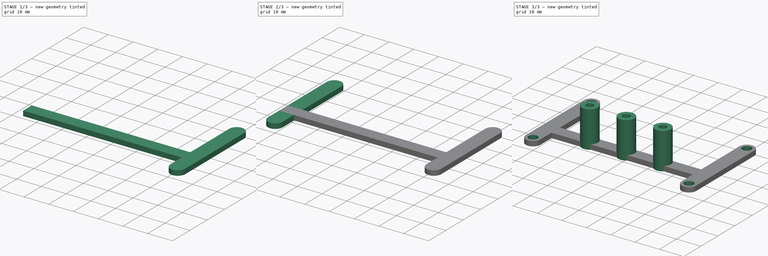
[diagram: build sequence overview — one tinted view per stage of 3, left to right]
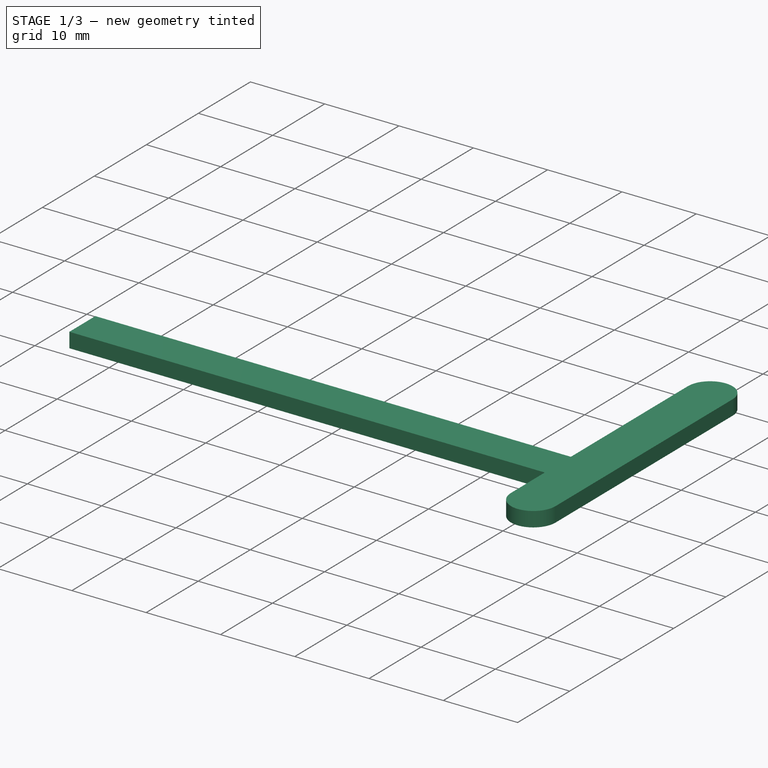
[diagram: stage 1 of 3 — iso view after this stage's code; geometry added in this stage tinted green]
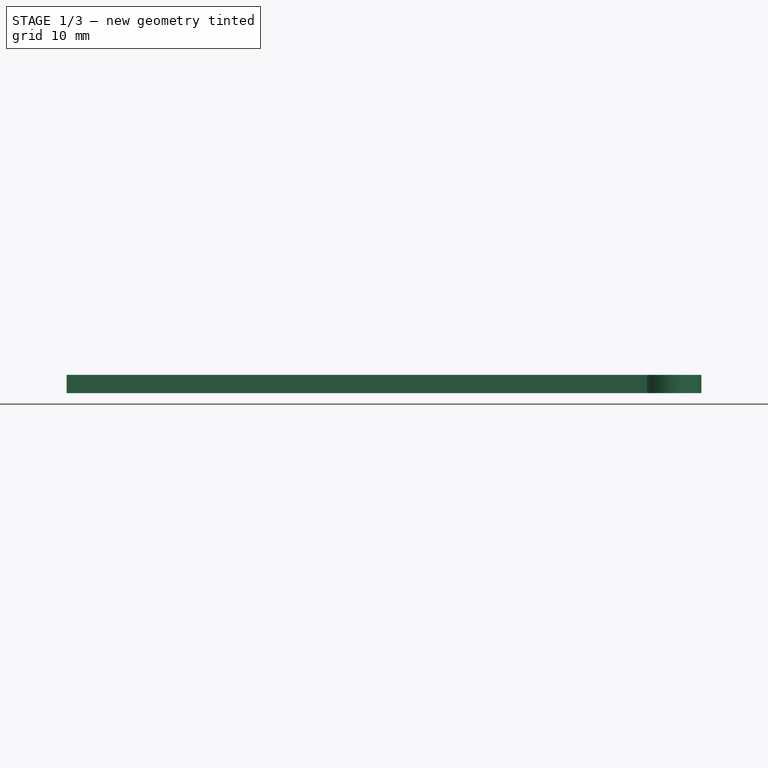
[diagram: stage 1 of 3 — front view after this stage's code; geometry added in this stage tinted green]
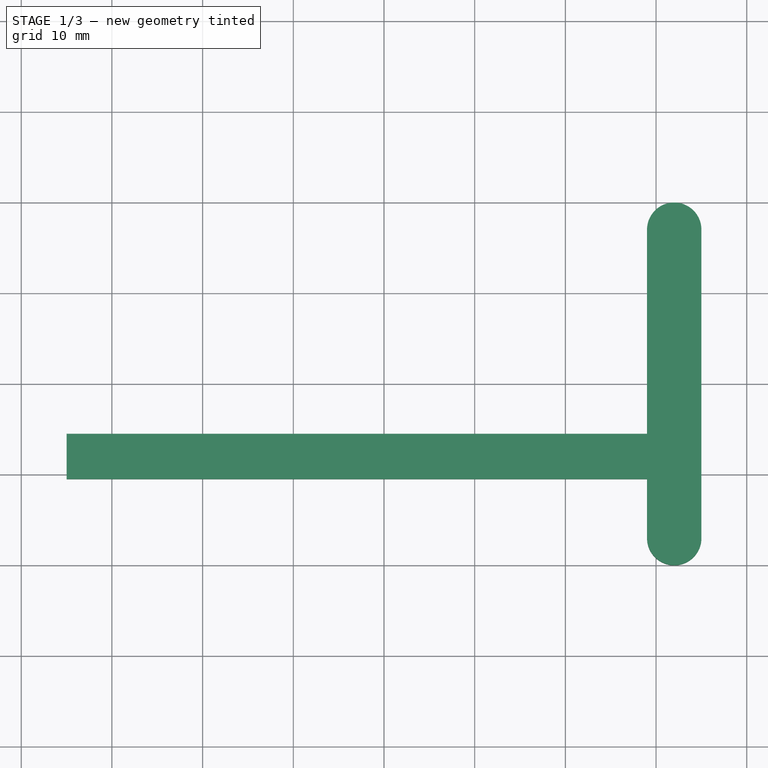
[diagram: stage 1 of 3 — top view after this stage's code; geometry added in this stage tinted green]
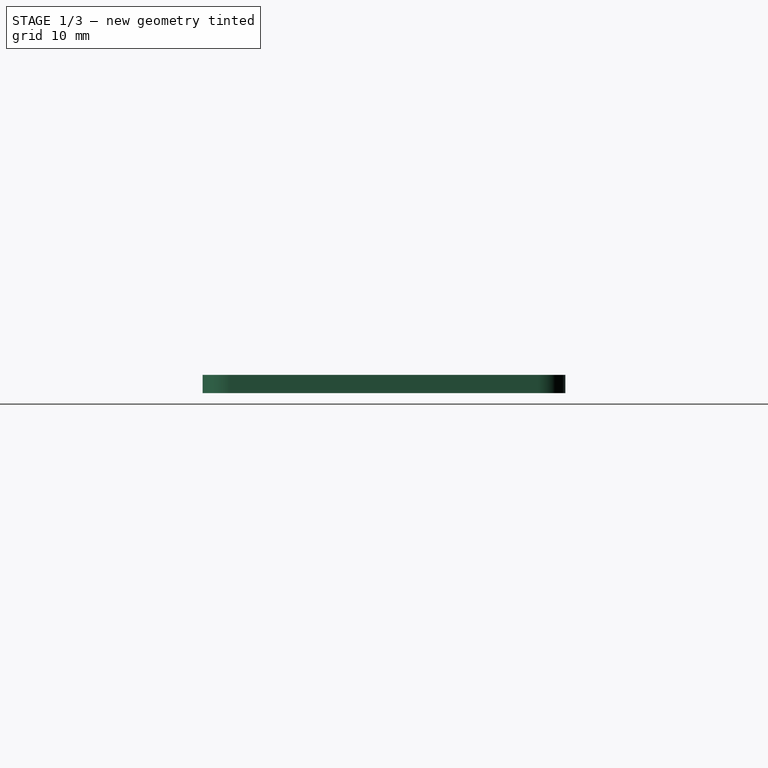
[diagram: stage 1 of 3 — right view after this stage's code; geometry added in this stage tinted green]
FCSTD DOCUMENT  (FreeCAD 0.16R6707 (Git))
Label: LineFollowSensors
License: All rights reserved
LicenseURL: http://en.wikipedia.org/wiki/All_rights_reserved
objects: Sketcher::SketchObject×4, PartDesign::Pad×3, PartDesign::Mirrored×1, PartDesign::Pocket×1
note: 13 computed .brp shape members not serialized (recipe doc carries the construction recipe); baked Part::Feature solids carry a one-line shape summary decoded from their .brp

FEATURE [Sketcher::SketchObject] Sketch
  sketch-geometry (4):
    g0: LineSegment StartX=-35 StartY=-5.5 StartZ=0 EndX=35 EndY=-5.5 EndZ=0
    g1: LineSegment StartX=35 StartY=-5.5 StartZ=0 EndX=35 EndY=-10.5 EndZ=0
    g2: LineSegment StartX=35 StartY=-10.5 StartZ=0 EndX=-35 EndY=-10.5 EndZ=0
    g3: LineSegment StartX=-35 StartY=-10.5 StartZ=0 EndX=-35 EndY=-5.5 EndZ=0
  constraints (12):
    c: Coincident(g0,g1)
    c: Coincident(g1,g2)
    c: Coincident(g2,g3)
    c: Coincident(g3,g0)
    c: Horizontal(g0)
    c: Horizontal(g2)
    c: Vertical(g1)
    c: Vertical(g3)
    c: Symmetric(g2,g1,g-2)
    c: DistanceY(g0,g-1) = 5.5
    c: Distance(g3) = 5
    c: Distance(g2) = 70
FEATURE [PartDesign::Pad] Pad
  Length = 2
  Length2 = 0
  Sketch = -> Sketch
  Type = 4
FEATURE [Sketcher::SketchObject] Sketch001
  Placement = pos=(0,0,2) rot=(0,0,1;0rad)
  Support = -> Pad [Face6]
  sketch-geometry (4):
    g0: LineSegment StartX=35 StartY=17 StartZ=0 EndX=35 EndY=-17 EndZ=0
    g1: LineSegment StartX=29 StartY=-17 StartZ=0 EndX=29 EndY=17 EndZ=0
    g2: ArcOfCircle CenterX=32 CenterY=-17 CenterZ=0 NormalX=0 NormalY=0 NormalZ=1 Radius=3 StartAngle=3.1416 EndAngle=6.28318
    g3: ArcOfCircle CenterX=32 CenterY=17 CenterZ=0 NormalX=0 NormalY=0 NormalZ=1 Radius=3 StartAngle=6.28318 EndAngle=9.42478
  constraints (13):
    c: Vertical(g0)
    c: Vertical(g1)
    c: Coincident(g2,g1)
    c: Coincident(g2,g0)
    c: Equal(g1,g0)
    c: DistanceY(g2) = -17
    c: DistanceX(g-1,g2) = 32
    c: Tangent(g2,g1)
    c: Radius(g2) = 3
    c: Coincident(g3,g1)
    c: Coincident(g3,g0)
    c: Tangent(g1,g3)
    c: Symmetric(g2,g3,g-1)
FEATURE [PartDesign::Pad] Pad001
  Length = 2
  Length2 = 100
  Reversed = true
  Sketch = -> Sketch001
  Type = 0
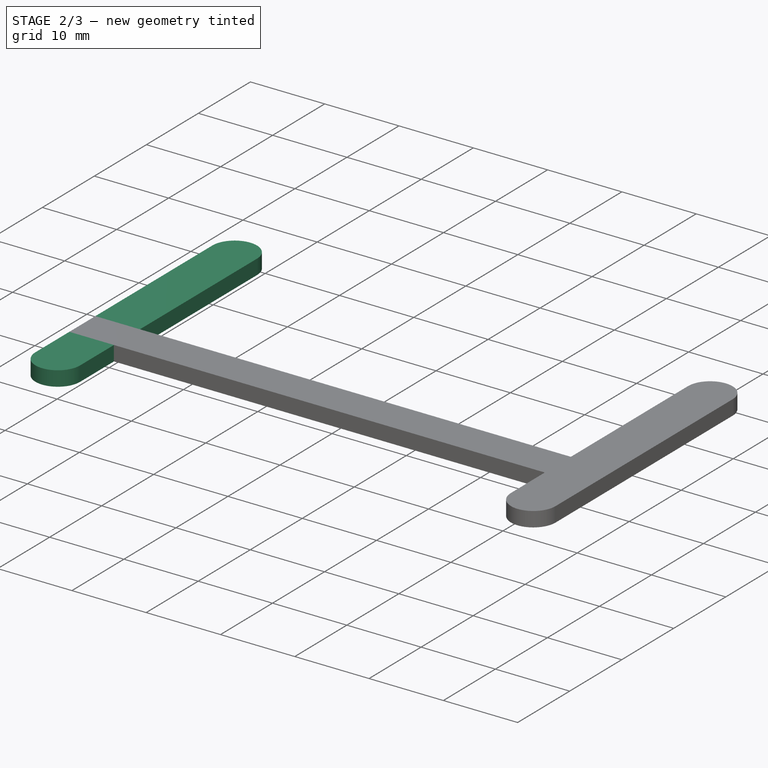
[diagram: stage 2 of 3 — iso view after this stage's code; geometry added in this stage tinted green]
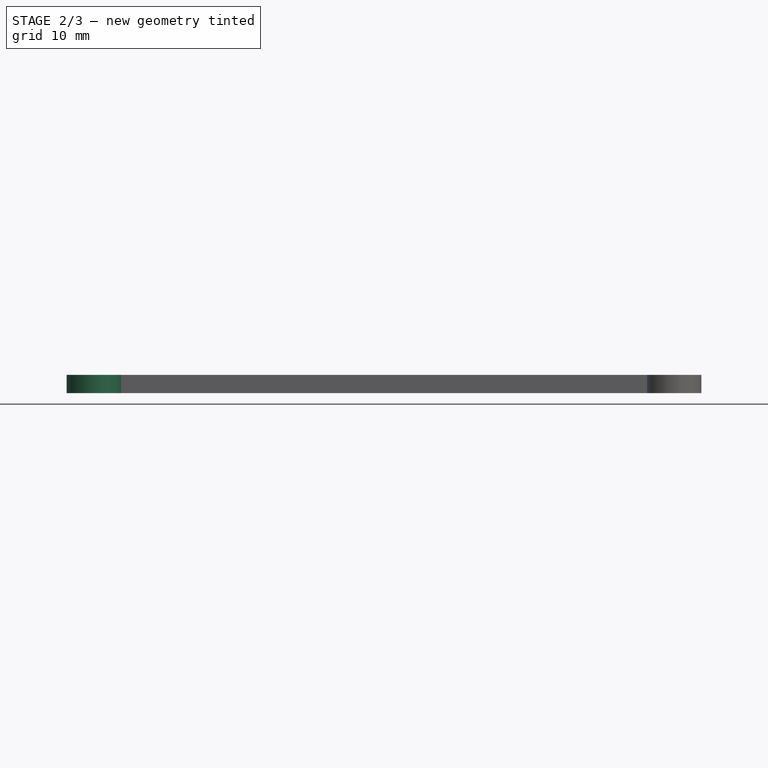
[diagram: stage 2 of 3 — front view after this stage's code; geometry added in this stage tinted green]
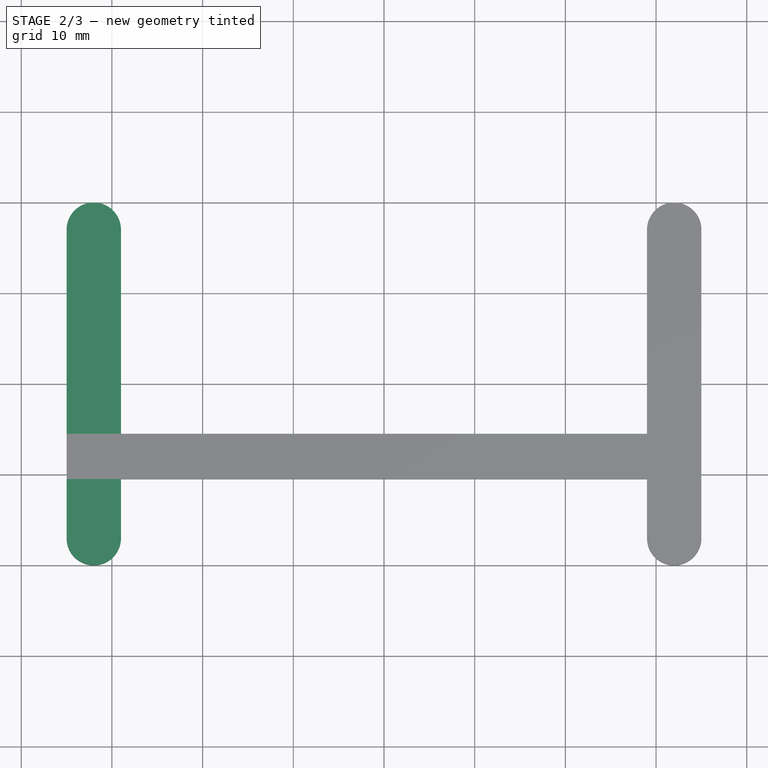
[diagram: stage 2 of 3 — top view after this stage's code; geometry added in this stage tinted green]
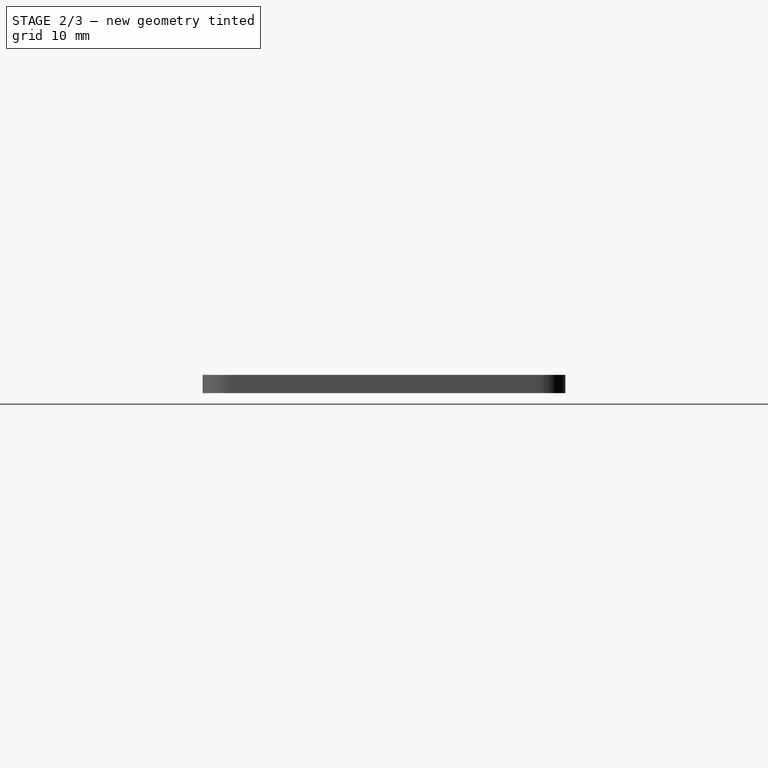
[diagram: stage 2 of 3 — right view after this stage's code; geometry added in this stage tinted green]
FEATURE [PartDesign::Mirrored] Mirrored
  MirrorPlane = -> Sketch001 [V_Axis]
  Originals = -> [Pad001]
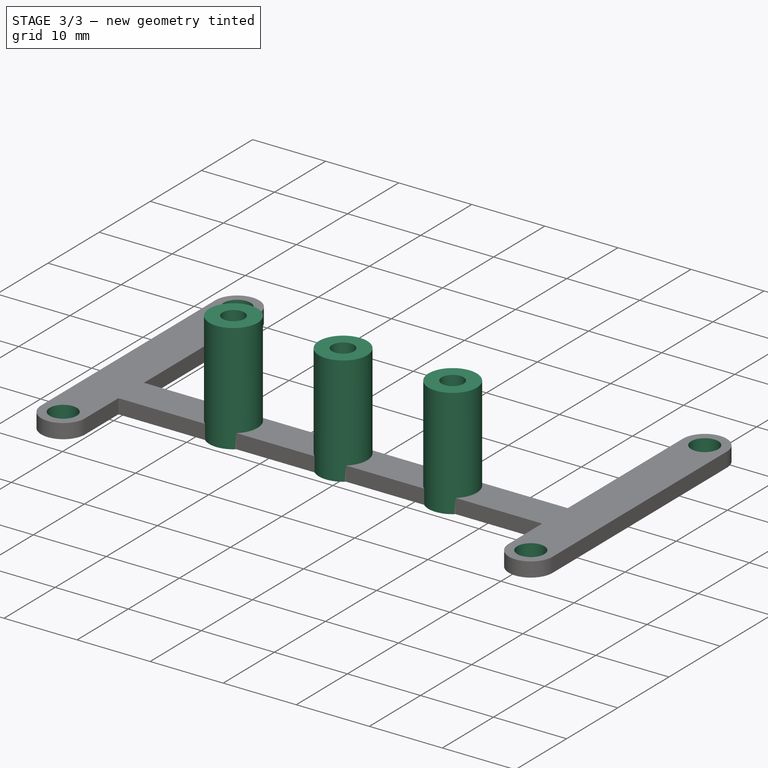
[diagram: stage 3 of 3 — iso view after this stage's code; geometry added in this stage tinted green]
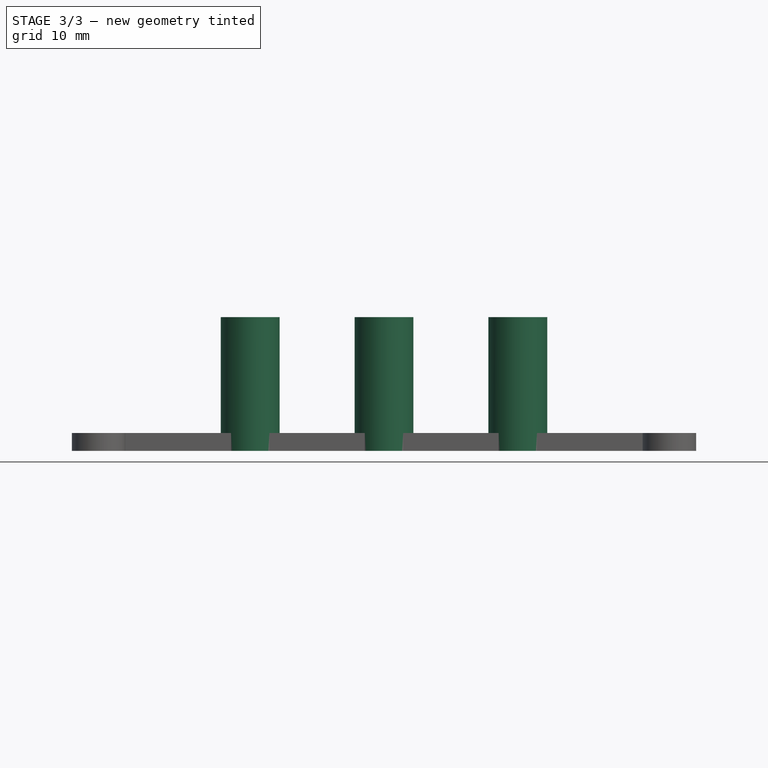
[diagram: stage 3 of 3 — front view after this stage's code; geometry added in this stage tinted green]
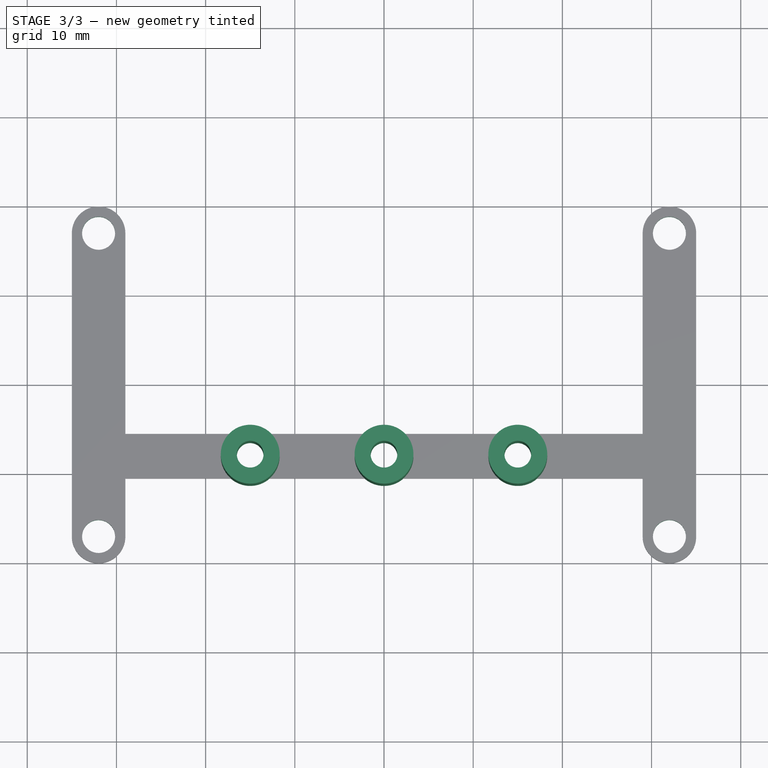
[diagram: stage 3 of 3 — top view after this stage's code; geometry added in this stage tinted green]
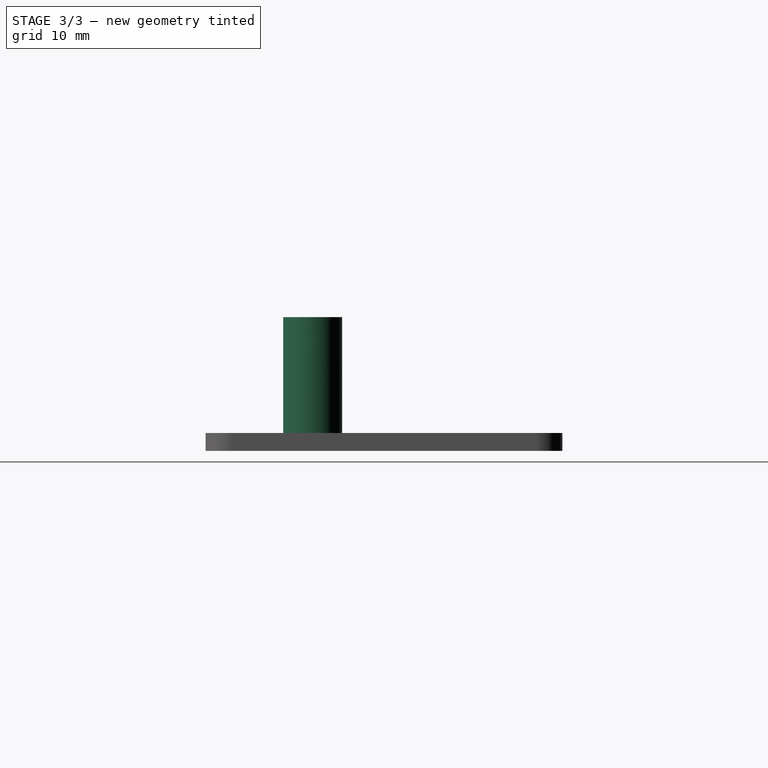
[diagram: stage 3 of 3 — right view after this stage's code; geometry added in this stage tinted green]
FEATURE [Sketcher::SketchObject] Sketch002
  Placement = pos=(0,0,2) rot=(0,0,1;0rad)
  Support = -> Mirrored [Face5]
  sketch-geometry (4):
    g0: Circle CenterX=0 CenterY=-8 CenterZ=0 NormalX=0 NormalY=0 NormalZ=1 Radius=3.3
    g1: LineSegment [constr] StartX=-15 StartY=-8 StartZ=0 EndX=15 EndY=-8 EndZ=0
    g2: Circle CenterX=-15 CenterY=-8 CenterZ=0 NormalX=0 NormalY=0 NormalZ=1 Radius=3.3
    g3: Circle CenterX=15 CenterY=-8 CenterZ=0 NormalX=0 NormalY=0 NormalZ=1 Radius=3.3
  constraints (11):
    c: PointOnObject(g0,g-2)
    c: Horizontal(g1)
    c: DistanceY(g1,g-1) = 8
    c: PointOnObject(g0,g1)
    c: Coincident(g2,g1)
    c: Coincident(g3,g1)
    c: Symmetric(g1,g1,g-2)
    c: Equal(g2,g0)
    c: Equal(g0,g3)
    c: Radius(g2) = 3.3
    c: Distance(g1,g0) = 15
FEATURE [PartDesign::Pad] Pad002
  Length = 13
  Length2 = 2
  Sketch = -> Sketch002
  Type = 4
FEATURE [Sketcher::SketchObject] Sketch003
  ExternalGeometry = -> [Pad002]
  Placement = pos=(0,0,0) rot=(1,0,0;3.14159rad)
  Support = -> Pad002 [Face18]
  sketch-geometry (7):
    g0: Circle CenterX=0 CenterY=8 CenterZ=0 NormalX=0 NormalY=0 NormalZ=1 Radius=1.5
    g1: Circle CenterX=-15 CenterY=8 CenterZ=0 NormalX=0 NormalY=0 NormalZ=1 Radius=1.5
    g2: Circle CenterX=15 CenterY=8 CenterZ=0 NormalX=0 NormalY=0 NormalZ=1 Radius=1.5
    g3: Circle CenterX=-32 CenterY=-17 CenterZ=0 NormalX=0 NormalY=0 NormalZ=1 Radius=1.85
    g4: Circle CenterX=-32 CenterY=17 CenterZ=0 NormalX=0 NormalY=0 NormalZ=1 Radius=1.85
    g5: Circle CenterX=32 CenterY=17 CenterZ=0 NormalX=0 NormalY=0 NormalZ=1 Radius=1.85
    g6: Circle CenterX=32 CenterY=-17 CenterZ=0 NormalX=0 NormalY=0 NormalZ=1 Radius=1.85
  constraints (16):
    c: Equal(g0,g1)
    c: Equal(g1,g2)
    c: Radius(g0) = 1.5
    c: Equal(g4,g3)
    c: Equal(g3,g6)
    c: Equal(g6,g5)
    c: Radius(g3) = 1.85
    c: Symmetric(g3,g6,g-2)
    c: Symmetric(g4,g5,g-2)
    c: PointOnObject(g0,g-2)
    c: Symmetric(g1,g2,g-2)
    c: DistanceY(g1,g0) = 0
    c: DistanceX(g1,g0) = 15
    c: Coincident(g-6,g6)
    c: Symmetric(g6,g5,g-1)
    c: Coincident(g2,g-7)
FEATURE [PartDesign::Pocket] Pocket
  Length = 10
  Sketch = -> Sketch003
  Type = 1
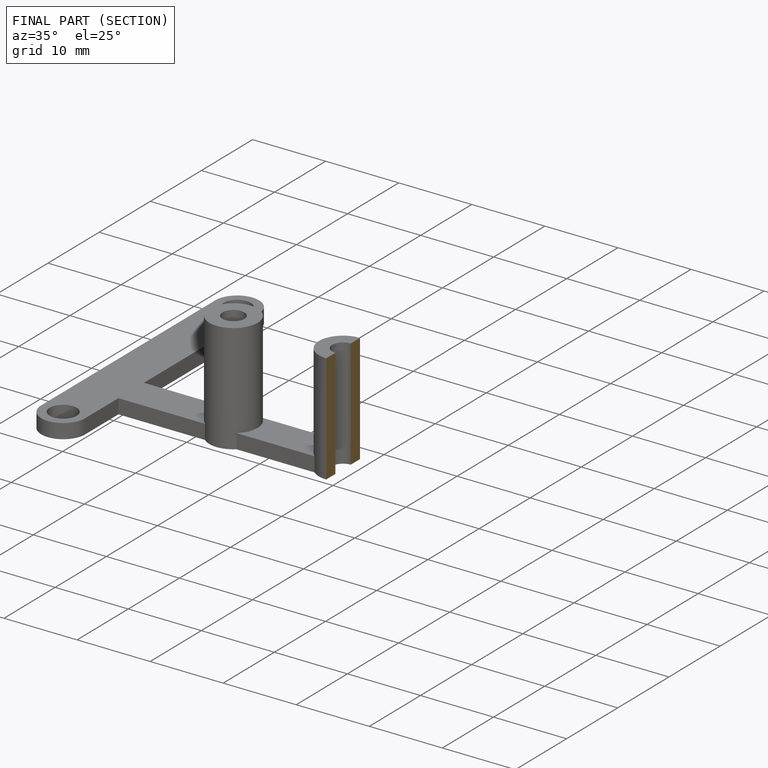
[diagram: finished part — half-section view (interior)]
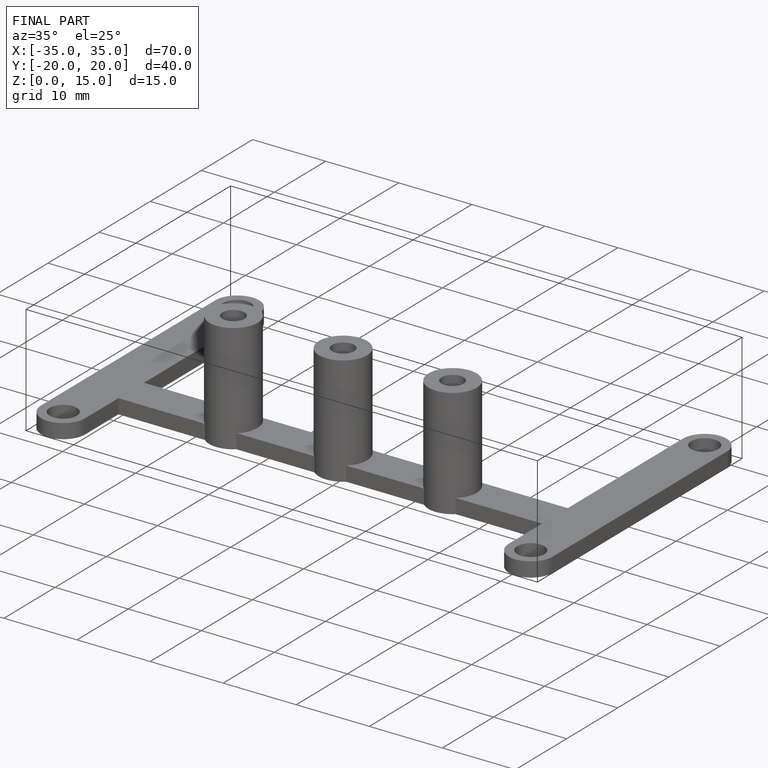
[diagram: finished part — iso view with bounding-box wireframe]
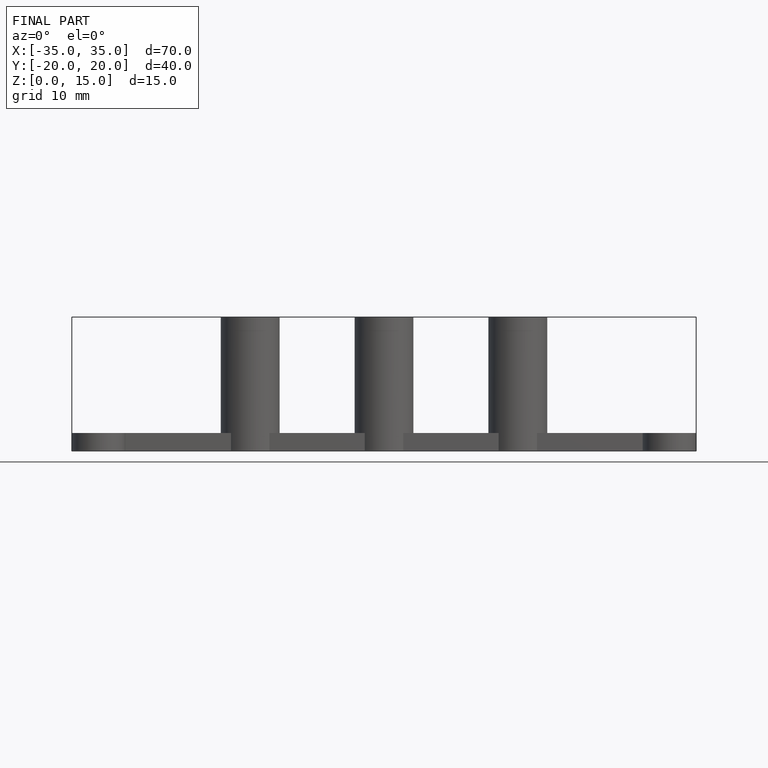
[diagram: finished part — front view with bounding-box wireframe]
